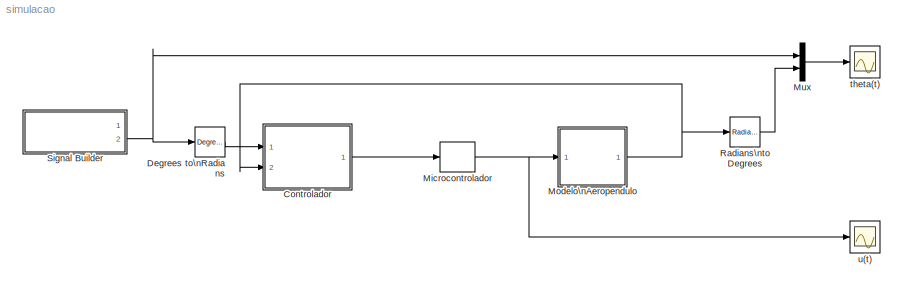
MODEL simulacao
KIND model
CONFIG InitFcn = alpha = 20.70;\nbeta =  1.27;\ngamma = 0.53;
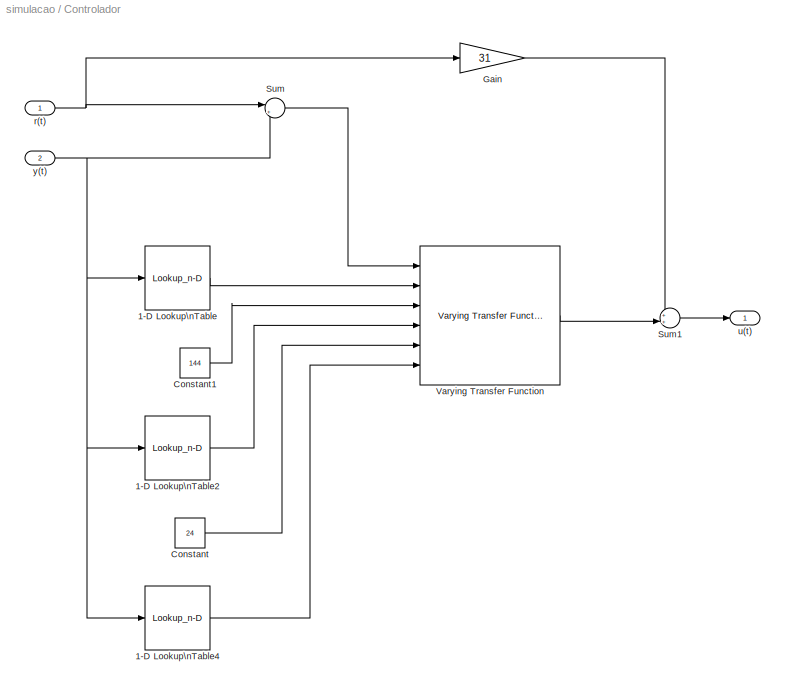
BLOCK [SubSystem] Controlador
  Ports = [2, 1]
  RequestExecContextInheritance = off
  SID = 230
BLOCK [Lookup_n-D] Controlador/1-D Lookup\nTable
  BreakpointsForDimension1 = deg2rad([15 37.5 55 70 85])
  InternalRulePriority = Speed
  NumberOfTableDimensions = 1
  Ports = [1, 1]
  RndMeth = Simplest
  SID = 281
  Table = [105 117.3 138.6 561 990]
BLOCK [Lookup_n-D] Controlador/1-D Lookup\nTable2
  BreakpointsForDimension1 = deg2rad([15 37.5 55 70 85])
  InternalRulePriority = Speed
  NumberOfTableDimensions = 1
  Ports = [1, 1]
  RndMeth = Simplest
  SID = 283
  Table = [402.5 442 511.5 726 907.5]
BLOCK [Lookup_n-D] Controlador/1-D Lookup\nTable4
  BreakpointsForDimension1 = deg2rad([15 37.5 55 70 85])
  InternalRulePriority = Speed
  NumberOfTableDimensions = 1
  Ports = [1, 1]
  RndMeth = Simplest
  SID = 285
  Table = [175 170 165 165 165]
BLOCK [Constant] Controlador/Constant
  SID = 286
  Value = 24
BLOCK [Constant] Controlador/Constant1
  SID = 287
  Value = 144
BLOCK [Gain] Controlador/Gain
  Gain = 31
  OutDataTypeStr = Inherit: Inherit via internal rule
  ParamDataTypeStr = Inherit: Inherit via internal rule
  SID = 291
  SaturateOnIntegerOverflow = off
BLOCK [Sum] Controlador/Sum
  IconShape = round
  InputSameDT = off
  Inputs = |+-
  OutDataTypeStr = Inherit: Inherit via internal rule
  Ports = [2, 1]
  SID = 236
  SaturateOnIntegerOverflow = off
BLOCK [Sum] Controlador/Sum1
  IconShape = round
  InputSameDT = off
  Inputs = ++|
  OutDataTypeStr = Inherit: Inherit via internal rule
  Ports = [2, 1]
  SID = 289
  SaturateOnIntegerOverflow = off
BLOCK [Reference] Controlador/Varying Transfer Function  REF=cstblocks/Linear Parameter Varying/Varying Transfer Function
  N = 2
  Ports = [6, 1]
  SID = 265
  SourceBlock = cstblocks/Linear Parameter Varying/Varying Transfer Function
  SourceProductBaseCode = CT
  SourceProductName = Control System Toolbox
  SourceType = Varying Transfer Function
BLOCK [Inport] Controlador/r(t)
  IconDisplay = Port number
  SID = 232
BLOCK [Outport] Controlador/u(t)
  IconDisplay = Port number
  SID = 235
BLOCK [Inport] Controlador/y(t)
  IconDisplay = Port number
  Port = 2
  SID = 231
BLOCK [Reference] Degrees to\nRadians  REF=simulink_extras/Transformations/Degrees to\nRadians
  Ports = [1, 1]
  SID = 197
  SourceBlock = simulink_extras/Transformations/Degrees to\nRadians
  SourceProductBaseCode = SL
  SourceProductName = Simulink
  SourceType = DegreesToRadians
BLOCK [ZeroOrderHold] Microcontrolador
  SID = 261
  SampleTime = 0.020
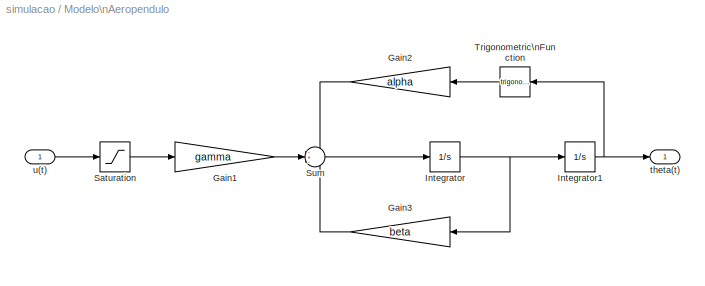
BLOCK [SubSystem] Modelo\nAeropendulo
  Ports = [1, 1]
  RequestExecContextInheritance = off
  SID = 257
BLOCK [Gain] Modelo\nAeropendulo/Gain1
  Gain = gamma
  OutDataTypeStr = Inherit: Inherit via internal rule
  ParamDataTypeStr = Inherit: Inherit via internal rule
  SID = 251
  SaturateOnIntegerOverflow = off
BLOCK [Gain] Modelo\nAeropendulo/Gain2
  Gain = alpha
  OutDataTypeStr = Inherit: Inherit via internal rule
  ParamDataTypeStr = Inherit: Inherit via internal rule
  SID = 254
  SaturateOnIntegerOverflow = off
BLOCK [Gain] Modelo\nAeropendulo/Gain3
  Gain = beta
  OutDataTypeStr = Inherit: Inherit via internal rule
  ParamDataTypeStr = Inherit: Inherit via internal rule
  SID = 255
  SaturateOnIntegerOverflow = off
BLOCK [Integrator] Modelo\nAeropendulo/Integrator
  Ports = [1, 1]
  SID = 252
BLOCK [Integrator] Modelo\nAeropendulo/Integrator1
  Ports = [1, 1]
  SID = 253
BLOCK [Saturate] Modelo\nAeropendulo/Saturation
  InputPortMap = u0
  LowerLimit = 0
  Ports = [1, 1]
  SID = 260
  UpperLimit = 100
BLOCK [Sum] Modelo\nAeropendulo/Sum
  IconShape = round
  InputSameDT = off
  Inputs = -+-
  OutDataTypeStr = Inherit: Inherit via internal rule
  Ports = [3, 1]
  SID = 250
  SaturateOnIntegerOverflow = off
BLOCK [Trigonometry] Modelo\nAeropendulo/Trigonometric\nFunction
  Ports = [1, 1]
  SID = 256
BLOCK [Outport] Modelo\nAeropendulo/theta(t)
  IconDisplay = Port number
  SID = 259
BLOCK [Inport] Modelo\nAeropendulo/u(t)
  IconDisplay = Port number
  SID = 258
BLOCK [Mux] Mux
  DisplayOption = bar
  Inputs = 2
  Ports = [2, 1]
  SID = 264
BLOCK [Reference] Radians\nto Degrees  REF=simulink_extras/Transformations/Radians\nto Degrees
  Ports = [1, 1]
  SID = 200
  SourceBlock = simulink_extras/Transformations/Radians\nto Degrees
  SourceProductBaseCode = SL
  SourceProductName = Simulink
  SourceType = RadiansToDegrees
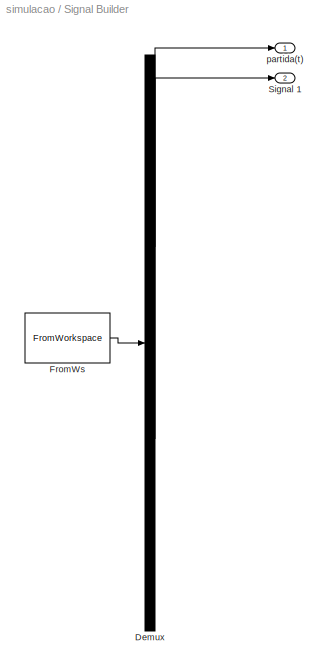
BLOCK [SubSystem] Signal Builder
  ClipboardFcn = sigbuilder_block('clipboard');
  CloseFcn = sigbuilder_block('close');
  ContinueFcn = sigbuilder_block('continue');
  CopyFcn = sigbuilder_block('copy');
  DeleteFcn = sigbuilder_block('delete');
  LoadFcn = sigbuilder_block('load');
  MaskHideContents = on
  ModelCloseFcn = sigbuilder_block('modelClose');
  NameChangeFcn = sigbuilder_block('namechange');
  OpenFcn = sigbuilder_block('open',[-396.75 180.75 1093.5 399.75 ]);
  PauseFcn = sigbuilder_block('pause');
  Ports = [0, 2]
  PreSaveFcn = sigbuilder_block('preSave');
  RequestExecContextInheritance = off
  SID = 125
  StartFcn = sigbuilder_block('start');
  StopFcn = sigbuilder_block('stop');
  Tag = STV Subsys
BLOCK [Demux] Signal Builder/Demux
  Outputs = 2
  Ports = [1, 2]
  SID = 125:1
  Tag = STV Demux
BLOCK [FromWorkspace] Signal Builder/FromWs
  SID = 125:2
  SampleTime = 0
  SigBuilderData = DataTag0
  Tag = STV FromWs
  VariableName = tuvar
  VnvData = DataTag1
  ZeroCross = on
BLOCK [Outport] Signal Builder/Signal 1
  IconDisplay = Port number
  Port = 2
  SID = 125:12
  Tag = STV Outport
BLOCK [Outport] Signal Builder/partida(t)
  IconDisplay = Port number
  SID = 125:10
  Tag = STV Outport
BLOCK [Scope] theta(t)
  Floating = off
  NumInputPorts = 1
  Ports = [1]
  SID = 169
  ScopeSpecificationString = Simulink.scopes.TimeScopeBlockCfg('CurrentConfiguration', extmgr.ConfigurationSet(extmgr.Configuration('Core','General UI',true),extmgr.Configuration('Core','Source UI',true),extmgr.Configuration('Sources','WiredSimulink',true,'DataLoggingVariableName','ScopeData1','DataLoggingSaveFormat','Array','DataLoggingDecimation','1','DataLoggingDecimateData',true),extmgr.Configuration('Visuals','Time Domai...<+1756ch>
BLOCK [Scope] u(t)
  Floating = off
  NumInputPorts = 1
  Ports = [1]
  SID = 218
  ScopeSpecificationString = Simulink.scopes.TimeScopeBlockCfg('CurrentConfiguration', extmgr.ConfigurationSet(extmgr.Configuration('Core','General UI',true),extmgr.Configuration('Core','Source UI',true),extmgr.Configuration('Sources','WiredSimulink',true,'DataLoggingSaveFormat','Array','DataLoggingDecimation','1','DataLoggingDecimateData',true),extmgr.Configuration('Visuals','Time Domain',true,'SerializedDisplays',{struct('M...<+1702ch>
LINE Controlador/1-D Lookup\nTable2:1 -> Controlador/Varying Transfer Function:4
LINE Controlador/1-D Lookup\nTable4:1 -> Controlador/Varying Transfer Function:6
LINE Controlador/1-D Lookup\nTable:1 -> Controlador/Varying Transfer Function:2
LINE Controlador/Constant1:1 -> Controlador/Varying Transfer Function:3
LINE Controlador/Constant:1 -> Controlador/Varying Transfer Function:5
LINE Controlador/Gain:1 -> Controlador/Sum1:1
LINE Controlador/Sum1:1 -> Controlador/u(t):1
LINE Controlador/Sum:1 -> Controlador/Varying Transfer Function:1
LINE Controlador/Varying Transfer Function:1 -> Controlador/Sum1:2
NET Controlador/r(t):1 -> Controlador/Gain:1, Controlador/Sum:1
NET Controlador/y(t):1 -> Controlador/1-D Lookup\nTable2:1, Controlador/1-D Lookup\nTable4:1, Controlador/1-D Lookup\nTable:1, Controlador/Sum:2
LINE Controlador:1 -> Microcontrolador:1
LINE Degrees to\nRadians:1 -> Controlador:1
NET Microcontrolador:1 -> Modelo\nAeropendulo:1, u(t):1
LINE Modelo\nAeropendulo/Gain1:1 -> Modelo\nAeropendulo/Sum:2
LINE Modelo\nAeropendulo/Gain2:1 -> Modelo\nAeropendulo/Sum:1
LINE Modelo\nAeropendulo/Gain3:1 -> Modelo\nAeropendulo/Sum:3
NET Modelo\nAeropendulo/Integrator1:1 -> Modelo\nAeropendulo/Trigonometric\nFunction:1, Modelo\nAeropendulo/theta(t):1
NET Modelo\nAeropendulo/Integrator:1 -> Modelo\nAeropendulo/Gain3:1, Modelo\nAeropendulo/Integrator1:1
LINE Modelo\nAeropendulo/Saturation:1 -> Modelo\nAeropendulo/Gain1:1
LINE Modelo\nAeropendulo/Sum:1 -> Modelo\nAeropendulo/Integrator:1
LINE Modelo\nAeropendulo/Trigonometric\nFunction:1 -> Modelo\nAeropendulo/Gain2:1
LINE Modelo\nAeropendulo/u(t):1 -> Modelo\nAeropendulo/Saturation:1
NET Modelo\nAeropendulo:1 -> Controlador:2, Radians\nto Degrees:1
LINE Mux:1 -> theta(t):1
LINE Radians\nto Degrees:1 -> Mux:2
LINE Signal Builder/Demux:1 -> Signal Builder/partida(t):1
LINE Signal Builder/Demux:2 -> Signal Builder/Signal 1:1
LINE Signal Builder/FromWs:1 -> Signal Builder/Demux:1
NET Signal Builder:2 -> Degrees to\nRadians:1, Mux:1
note: NET lines group one-source signal fan-out (src -> all destinations, sorted); 1:1 wires keep LINE
